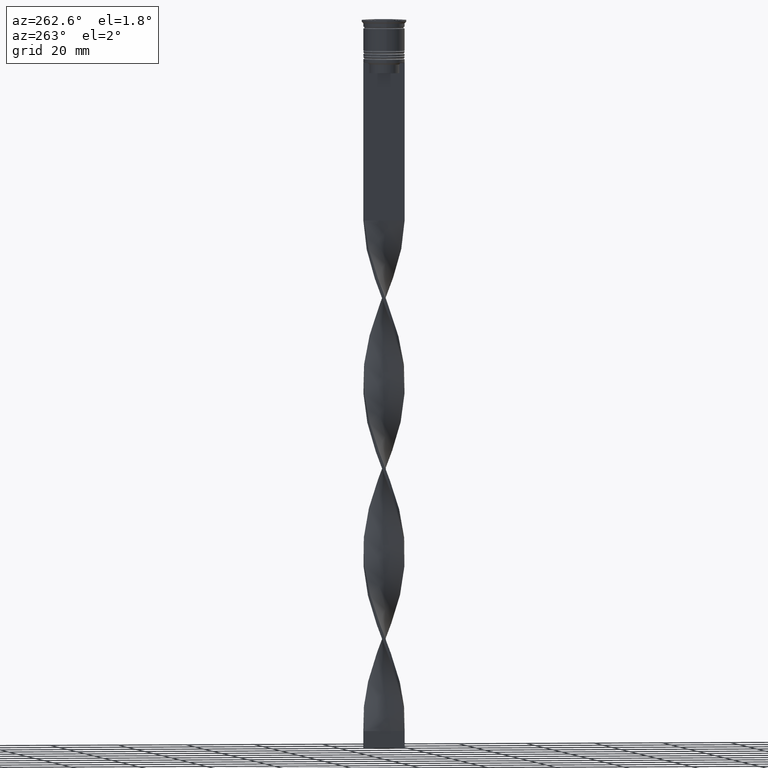
[diagram: clean part render]
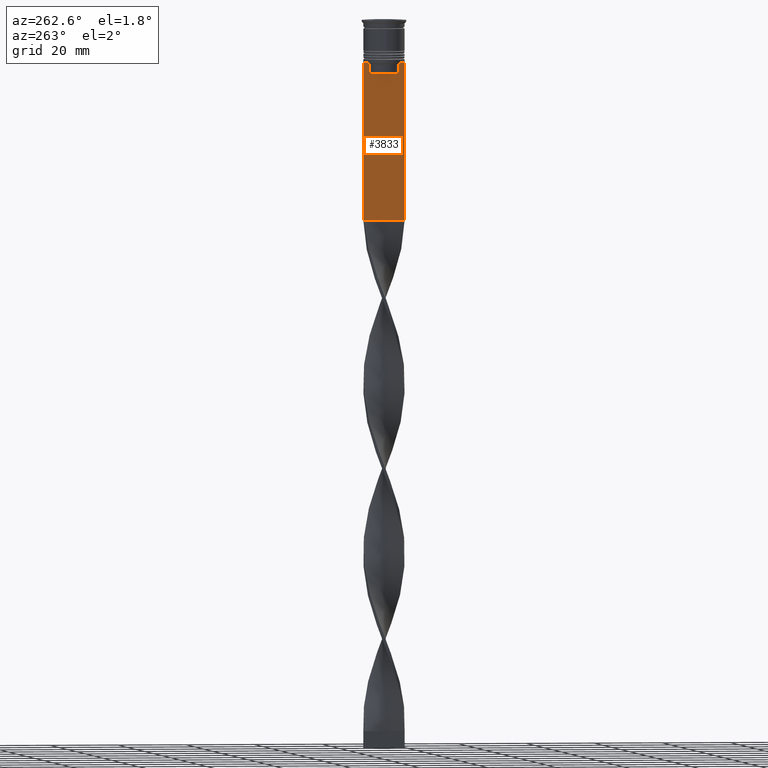
[diagram: same view with one face highlighted and labeled with its STEP entity id]
A machine part, auxiliary view. The second image highlights one B-rep face of the part: STEP entity #3833.
In plain terms, the highlighted planar face has unit normal (-1, 0, 0).
Its self-contained STEP definition (entity closure, byte-faithful):
#40 = ORIENTED_EDGE ( 'NONE', *, *, #3705, .F. ) ;
#45 = LINE ( 'NONE', #1191, #2136 ) ;
#69 = LINE ( 'NONE', #1605, #1823 ) ;
#151 = DIRECTION ( 'NONE',  ( 0.000000000000000000, 0.000000000000000000, 1.000000000000000000 ) ) ;
#201 = DIRECTION ( 'NONE',  ( 0.000000000000000000, 0.000000000000000000, -1.000000000000000000 ) ) ;
#273 = ORIENTED_EDGE ( 'NONE', *, *, #1926, .F. ) ;
#333 = ORIENTED_EDGE ( 'NONE', *, *, #2715, .F. ) ;
#361 = CARTESIAN_POINT ( 'NONE',  ( -0.4999999999999997780, -6.000000000000000000, -58.50000000000000000 ) ) ;
#512 = CARTESIAN_POINT ( 'NONE',  ( -0.4999999999999997780, -6.000000000000000000, -12.50000000000000000 ) ) ;
#544 = LINE ( 'NONE', #874, #1584 ) ;
#590 = CARTESIAN_POINT ( 'NONE',  ( -0.4999999999999997780, -4.706831372970964544, -12.66671687695981596 ) ) ;
#601 = CARTESIAN_POINT ( 'NONE',  ( -0.4999999999999997780, -4.371498598878878816, -13.00000000000000178 ) ) ;
#662 = CARTESIAN_POINT ( 'NONE',  ( -0.4999999999999997780, 4.371498598878878816, -13.00000000000000178 ) ) ;
#706 = CARTESIAN_POINT ( 'NONE',  ( -0.4999999999999997780, 4.539195634199897356, -12.83338923751318816 ) ) ;
#742 = CARTESIAN_POINT ( 'NONE',  ( -0.4999999999999997780, -6.000000000000000000, -0.4584054212077061097 ) ) ;
#794 = CARTESIAN_POINT ( 'NONE',  ( -0.4999999999999997780, 6.000000000000000888, -0.4584054212077061097 ) ) ;
#808 = DIRECTION ( 'NONE',  ( 0.000000000000000000, -1.000000000000000000, 0.000000000000000000 ) ) ;
#869 = CARTESIAN_POINT ( 'NONE',  ( -0.4999999999999997780, 4.371498598878878816, -15.50000000000000000 ) ) ;
#874 = CARTESIAN_POINT ( 'NONE',  ( -0.4999999999999997780, -6.000000000000000000, -12.50000000000000000 ) ) ;
#929 = B_SPLINE_CURVE_WITH_KNOTS ( 'NONE', 3,
 ( #1215, #3304, #590, #2054 ),
 .UNSPECIFIED., .F., .F.,
 ( 4, 4 ),
 ( 0.02089901220910806920, 0.02161421017310284978 ),
 .UNSPECIFIED. ) ;
#969 = VERTEX_POINT ( 'NONE', #512 ) ;
#986 = EDGE_CURVE ( 'NONE', #1610, #2764, #2573, .T. ) ;
#1040 = EDGE_CURVE ( 'NONE', #1752, #2278, #929, .T. ) ;
#1094 = VECTOR ( 'NONE', #2416, 1000.000000000000000 ) ;
#1112 = DIRECTION ( 'NONE',  ( -0.000000000000000000, -0.000000000000000000, 1.000000000000000000 ) ) ;
#1129 = VERTEX_POINT ( 'NONE', #3857 ) ;
#1191 = CARTESIAN_POINT ( 'NONE',  ( -0.4999999999999997780, -6.000000000000000000, -12.50000000000000000 ) ) ;
#1212 = CARTESIAN_POINT ( 'NONE',  ( -0.4999999999999997780, -4.371498598878878816, -15.50000000000000000 ) ) ;
#1215 = CARTESIAN_POINT ( 'NONE',  ( -0.4999999999999997780, -4.371498598878878816, -13.00000000000000178 ) ) ;
#1230 = CARTESIAN_POINT ( 'NONE',  ( -0.4999999999999997780, 6.000000000000001776, -12.50000000000000000 ) ) ;
#1263 = CARTESIAN_POINT ( 'NONE',  ( -0.4999999999999997780, -6.000000000000000000, -12.50000000000000000 ) ) ;
#1303 = ORIENTED_EDGE ( 'NONE', *, *, #3435, .F. ) ;
#1321 = LINE ( 'NONE', #1381, #2713 ) ;
#1330 = VECTOR ( 'NONE', #808, 1000.000000000000000 ) ;
#1363 = VERTEX_POINT ( 'NONE', #1230 ) ;
#1381 = CARTESIAN_POINT ( 'NONE',  ( -0.4999999999999997780, -6.000000000000000000, -0.4584054212077061097 ) ) ;
#1436 = EDGE_CURVE ( 'NONE', #3702, #1610, #3480, .T. ) ;
#1438 = EDGE_CURVE ( 'NONE', #1363, #3235, #69, .T. ) ;
#1456 = AXIS2_PLACEMENT_3D ( 'NONE', #742, #2803, #151 ) ;
#1471 = ORIENTED_EDGE ( 'NONE', *, *, #986, .F. ) ;
#1494 = ORIENTED_EDGE ( 'NONE', *, *, #1040, .F. ) ;
#1584 = VECTOR ( 'NONE', #1740, 1000.000000000000000 ) ;
#1605 = CARTESIAN_POINT ( 'NONE',  ( -0.4999999999999997780, -6.000000000000000000, -12.50000000000000000 ) ) ;
#1610 = VERTEX_POINT ( 'NONE', #3485 ) ;
#1617 = LINE ( 'NONE', #3804, #1715 ) ;
#1655 = CARTESIAN_POINT ( 'NONE',  ( -0.4999999999999997780, 4.371498598878878816, 0.000000000000000000 ) ) ;
#1702 = VECTOR ( 'NONE', #1985, 1000.000000000000000 ) ;
#1715 = VECTOR ( 'NONE', #1112, 1000.000000000000000 ) ;
#1740 = DIRECTION ( 'NONE',  ( 0.000000000000000000, -1.000000000000000000, 0.000000000000000000 ) ) ;
#1752 = VERTEX_POINT ( 'NONE', #601 ) ;
#1823 = VECTOR ( 'NONE', #3338, 1000.000000000000000 ) ;
#1867 = LINE ( 'NONE', #361, #1094 ) ;
#1926 = EDGE_CURVE ( 'NONE', #3235, #3702, #544, .T. ) ;
#1975 = CARTESIAN_POINT ( 'NONE',  ( -0.4999999999999997780, -4.874423042781576676, -12.50000000000000000 ) ) ;
#1985 = DIRECTION ( 'NONE',  ( 0.000000000000000000, 0.000000000000000000, -1.000000000000000000 ) ) ;
#1988 = DIRECTION ( 'NONE',  ( 0.000000000000000000, 0.000000000000000000, -1.000000000000000000 ) ) ;
#2054 = CARTESIAN_POINT ( 'NONE',  ( -0.4999999999999997780, -4.874423042781576676, -12.50000000000000000 ) ) ;
#2072 = EDGE_CURVE ( 'NONE', #3068, #2110, #1867, .T. ) ;
#2108 = CARTESIAN_POINT ( 'NONE',  ( -0.4999999999999997780, -6.000000000000000000, -58.50000000000000000 ) ) ;
#2110 = VERTEX_POINT ( 'NONE', #3314 ) ;
#2136 = VECTOR ( 'NONE', #2720, 1000.000000000000000 ) ;
#2171 = ORIENTED_EDGE ( 'NONE', *, *, #2072, .F. ) ;
#2225 = LINE ( 'NONE', #1263, #2769 ) ;
#2278 = VERTEX_POINT ( 'NONE', #1975 ) ;
#2330 = ORIENTED_EDGE ( 'NONE', *, *, #1438, .F. ) ;
#2416 = DIRECTION ( 'NONE',  ( 0.000000000000000000, 1.000000000000000000, 0.000000000000000000 ) ) ;
#2518 = LINE ( 'NONE', #794, #3348 ) ;
#2541 = DIRECTION ( 'NONE',  ( 0.000000000000000000, -1.000000000000000000, 0.000000000000000000 ) ) ;
#2559 = EDGE_CURVE ( 'NONE', #969, #3068, #1321, .T. ) ;
#2573 = LINE ( 'NONE', #1655, #1702 ) ;
#2600 = EDGE_LOOP ( 'NONE', ( #2795, #273, #2330, #2706, #2171, #3660, #1303, #40, #1494, #333, #3668, #1471 ) ) ;
#2659 = EDGE_CURVE ( 'NONE', #1363, #2110, #2518, .T. ) ;
#2706 = ORIENTED_EDGE ( 'NONE', *, *, #2659, .T. ) ;
#2713 = VECTOR ( 'NONE', #201, 1000.000000000000000 ) ;
#2715 = EDGE_CURVE ( 'NONE', #3789, #1752, #1617, .T. ) ;
#2720 = DIRECTION ( 'NONE',  ( 0.000000000000000000, -1.000000000000000000, 0.000000000000000000 ) ) ;
#2764 = VERTEX_POINT ( 'NONE', #869 ) ;
#2769 = VECTOR ( 'NONE', #2541, 1000.000000000000000 ) ;
#2795 = ORIENTED_EDGE ( 'NONE', *, *, #1436, .F. ) ;
#2803 = DIRECTION ( 'NONE',  ( -1.000000000000000000, 0.000000000000000000, 0.000000000000000000 ) ) ;
#2864 = CARTESIAN_POINT ( 'NONE',  ( -0.4999999999999997780, 5.878775382679627626, -12.50000000000000000 ) ) ;
#2881 = EDGE_CURVE ( 'NONE', #2764, #3789, #2987, .T. ) ;
#2987 = LINE ( 'NONE', #3507, #1330 ) ;
#3068 = VERTEX_POINT ( 'NONE', #2108 ) ;
#3106 = CARTESIAN_POINT ( 'NONE',  ( -0.4999999999999997780, 4.706831415367290106, -12.66671683478478982 ) ) ;
#3143 = FACE_OUTER_BOUND ( 'NONE', #2600, .T. ) ;
#3235 = VERTEX_POINT ( 'NONE', #2864 ) ;
#3304 = CARTESIAN_POINT ( 'NONE',  ( -0.4999999999999997780, -4.539195586926424220, -12.83338928448044136 ) ) ;
#3314 = CARTESIAN_POINT ( 'NONE',  ( -0.4999999999999997780, 6.000000000000000888, -58.50000000000000000 ) ) ;
#3338 = DIRECTION ( 'NONE',  ( 0.000000000000000000, -1.000000000000000000, 0.000000000000000000 ) ) ;
#3348 = VECTOR ( 'NONE', #1988, 1000.000000000000000 ) ;
#3396 = PLANE ( 'NONE',  #1456 ) ;
#3435 = EDGE_CURVE ( 'NONE', #1129, #969, #2225, .T. ) ;
#3480 = B_SPLINE_CURVE_WITH_KNOTS ( 'NONE', 3,
 ( #3652, #3106, #706, #662 ),
 .UNSPECIFIED., .F., .F.,
 ( 4, 4 ),
 ( 0.008336552452178418518, 0.009045730124312837891 ),
 .UNSPECIFIED. ) ;
#3485 = CARTESIAN_POINT ( 'NONE',  ( -0.4999999999999997780, 4.371498598878878816, -13.00000000000000178 ) ) ;
#3507 = CARTESIAN_POINT ( 'NONE',  ( -0.4999999999999997780, 4.399999999999999467, -15.50000000000000000 ) ) ;
#3652 = CARTESIAN_POINT ( 'NONE',  ( -0.4999999999999997780, 4.874423042781576676, -12.50000000000000000 ) ) ;
#3660 = ORIENTED_EDGE ( 'NONE', *, *, #2559, .F. ) ;
#3668 = ORIENTED_EDGE ( 'NONE', *, *, #2881, .F. ) ;
#3702 = VERTEX_POINT ( 'NONE', #3890 ) ;
#3705 = EDGE_CURVE ( 'NONE', #2278, #1129, #45, .T. ) ;
#3789 = VERTEX_POINT ( 'NONE', #1212 ) ;
#3804 = CARTESIAN_POINT ( 'NONE',  ( -0.4999999999999997780, -4.371498598878878816, 0.000000000000000000 ) ) ;
#3833 = ADVANCED_FACE ( 'NONE', ( #3143 ), #3396, .T. ) ;
#3857 = CARTESIAN_POINT ( 'NONE',  ( -0.4999999999999997780, -5.878775382679627626, -12.50000000000000000 ) ) ;
#3890 = CARTESIAN_POINT ( 'NONE',  ( -0.4999999999999997780, 4.874423042781576676, -12.50000000000000000 ) ) ;